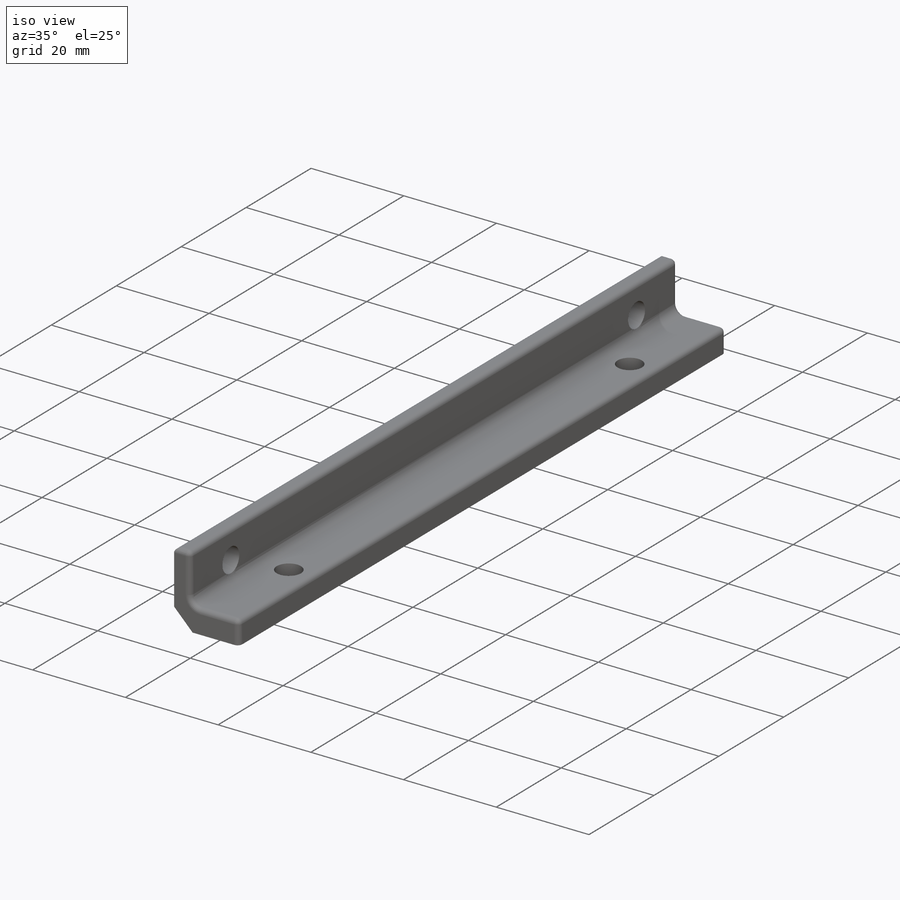
[diagram: iso view]
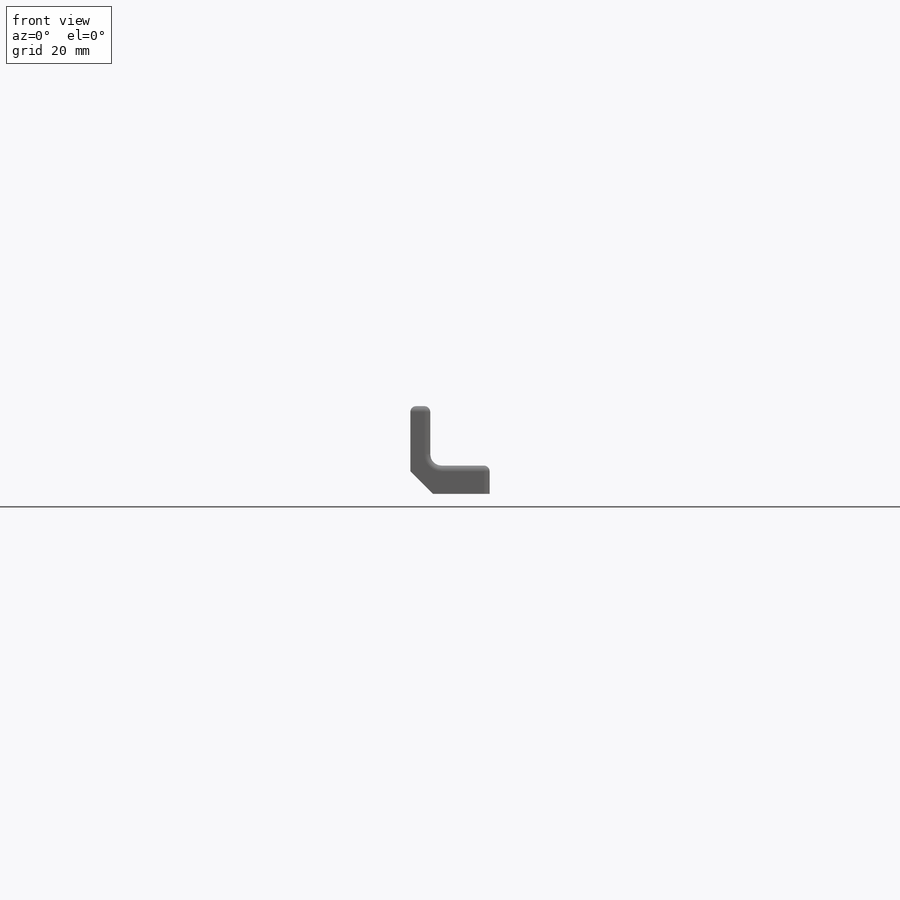
[diagram: front view]
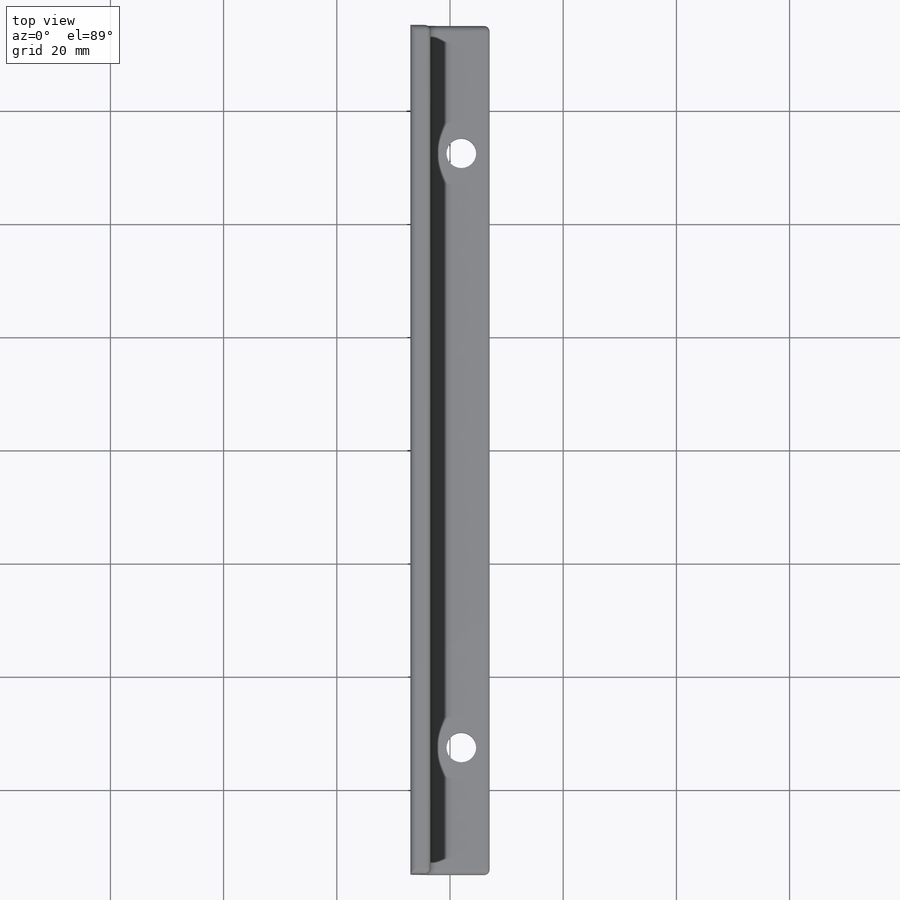
[diagram: top view]
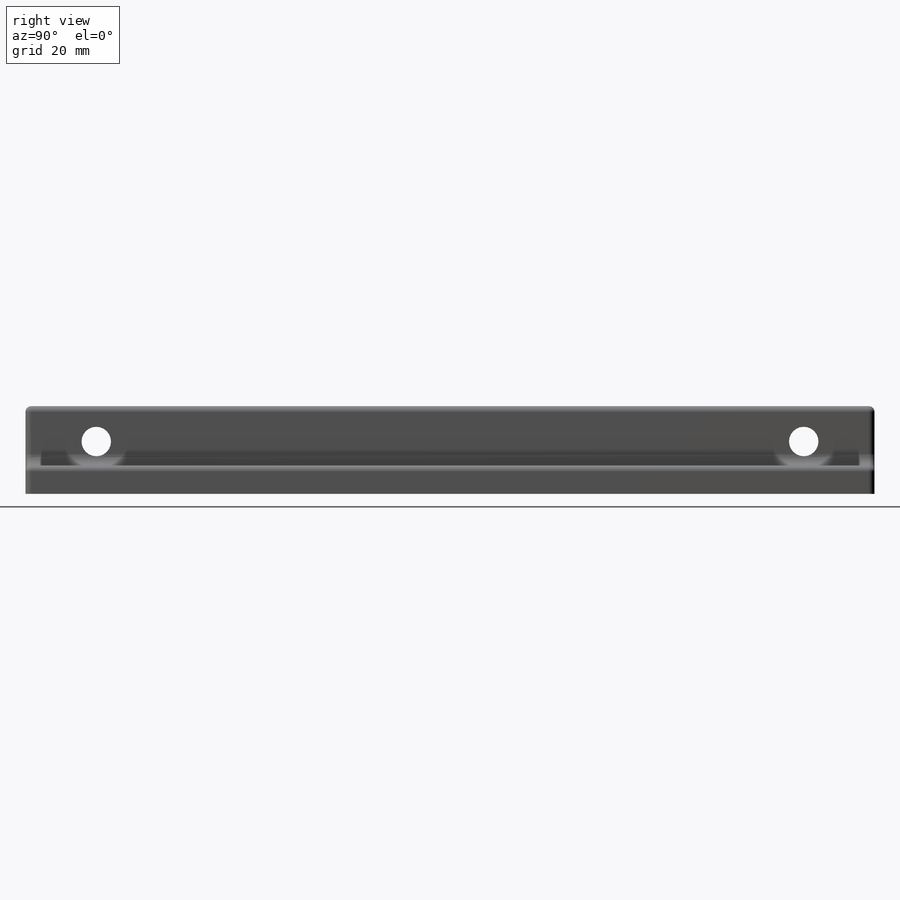
[diagram: right view]
SOLIDWORKS PART (.sldprt)
format: sldprt  version: not decoded by parser v0  size: 281,088 bytes
history: native  units: mm
features: sketch x4, fillet x4, extrude x2, cut_extrude x2, material x1, chamfer x1 (+13 scaffold rows collapsed)
feature tree (27):
  scaffold x13  (default folders/planes/origin — collapsed)
  material  "Material <not specified>"
  sketch  "Sketch1"  dims[D1=150.0mm D2=14.0mm]
  extrude  "Boss-Extrude1"  Depth=3.5mm
  sketch  "Sketch2"  dims[D1=3.5mm]
  extrude  "Boss-Extrude3"  Depth=10.5mm
  sketch  "Sketch3"  dims[D2=5.2mm D1=12.5mm D3=6.25mm]
  cut_extrude  "Cut-Extrude1"  [1 undecoded]
  sketch  "Sketch4"  dims[c1.D2=5.25mm c1.D3=5.2mm c1.D1=22.5mm c2.D3=5.0mm]
  cut_extrude  "Cut-Extrude2"  [1 undecoded]
  chamfer  "Chamfer1"  Distance=4mm Angle=45deg
  fillet  "Fillet1"  Radius=2mm
  fillet  "Fillet2"  Radius=1mm
  fillet  "Fillet3"  Radius=1mm
  fillet  "Fillet4"  Radius=1mm
decode coverage: 11 of 13 modeling features carry decoded parameters
note: 2 parameter values undecoded
note: suppression state not decoded; provenance and decode notes live in map.json
